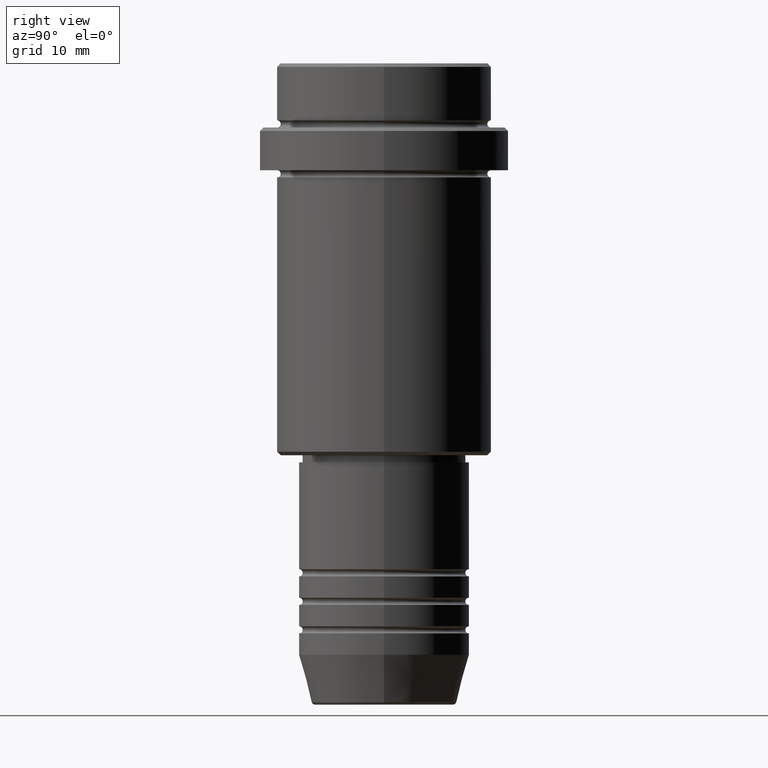
[diagram: clean part render]
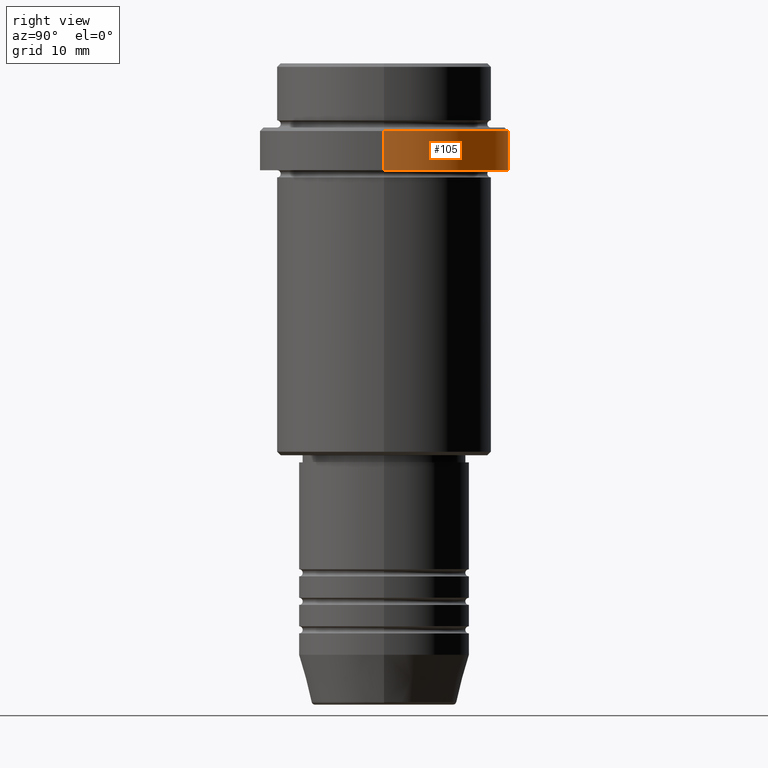
[diagram: same view with one face highlighted and labeled with its STEP entity id]
A machine part, right view. The second image highlights one B-rep face of the part: STEP entity #105.
In plain terms, the highlighted cylindrical surface (partial cylindrical patch) has radius 17.5 mm, axis along (-0, -0, 1).
Its self-contained STEP definition (entity closure, byte-faithful):
#38 = DIRECTION ( 'NONE',  ( 0.000000000000000000, 0.000000000000000000, -1.000000000000000000 ) ) ;
#61 = DIRECTION ( 'NONE',  ( 1.000000000000000000, 0.000000000000000000, 0.000000000000000000 ) ) ;
#105 = ADVANCED_FACE ( 'NONE', ( #704 ), #306, .T. ) ;
#123 = CARTESIAN_POINT ( 'NONE',  ( -17.50000000000000000, 2.143131898507868248E-15, 0.000000000000000000 ) ) ;
#181 = ORIENTED_EDGE ( 'NONE', *, *, #1268, .T. ) ;
#224 = CIRCLE ( 'NONE', #564, 17.50000000000000000 ) ;
#306 = CYLINDRICAL_SURFACE ( 'NONE', #516, 17.50000000000000000 ) ;
#321 = VERTEX_POINT ( 'NONE', #1023 ) ;
#360 = CIRCLE ( 'NONE', #1162, 17.50000000000000000 ) ;
#435 = ORIENTED_EDGE ( 'NONE', *, *, #630, .T. ) ;
#474 = CARTESIAN_POINT ( 'NONE',  ( -17.50000000000000000, 2.143131898507868248E-15, -15.00000000000000000 ) ) ;
#516 = AXIS2_PLACEMENT_3D ( 'NONE', #821, #1037, #1262 ) ;
#564 = AXIS2_PLACEMENT_3D ( 'NONE', #803, #687, #917 ) ;
#573 = CARTESIAN_POINT ( 'NONE',  ( 17.50000000000000000, 0.000000000000000000, -15.00000000000000000 ) ) ;
#609 = DIRECTION ( 'NONE',  ( -0.000000000000000000, -0.000000000000000000, 1.000000000000000000 ) ) ;
#630 = EDGE_CURVE ( 'NONE', #1267, #321, #360, .T. ) ;
#687 = DIRECTION ( 'NONE',  ( -0.000000000000000000, -0.000000000000000000, 1.000000000000000000 ) ) ;
#696 = EDGE_CURVE ( 'NONE', #976, #986, #224, .T. ) ;
#704 = FACE_OUTER_BOUND ( 'NONE', #732, .T. ) ;
#716 = LINE ( 'NONE', #797, #832 ) ;
#732 = EDGE_LOOP ( 'NONE', ( #985, #181, #435, #1075 ) ) ;
#780 = LINE ( 'NONE', #123, #1337 ) ;
#797 = CARTESIAN_POINT ( 'NONE',  ( 17.50000000000000000, 0.000000000000000000, 0.000000000000000000 ) ) ;
#803 = CARTESIAN_POINT ( 'NONE',  ( 0.000000000000000000, 0.000000000000000000, -15.00000000000000000 ) ) ;
#821 = CARTESIAN_POINT ( 'NONE',  ( 0.000000000000000000, 0.000000000000000000, 0.000000000000000000 ) ) ;
#832 = VECTOR ( 'NONE', #609, 1000.000000000000000 ) ;
#917 = DIRECTION ( 'NONE',  ( 1.000000000000000000, 0.000000000000000000, 0.000000000000000000 ) ) ;
#976 = VERTEX_POINT ( 'NONE', #573 ) ;
#985 = ORIENTED_EDGE ( 'NONE', *, *, #696, .T. ) ;
#986 = VERTEX_POINT ( 'NONE', #474 ) ;
#1023 = CARTESIAN_POINT ( 'NONE',  ( 17.50000000000000000, 0.000000000000000000, -9.499999999999971578 ) ) ;
#1037 = DIRECTION ( 'NONE',  ( -0.000000000000000000, -0.000000000000000000, 1.000000000000000000 ) ) ;
#1075 = ORIENTED_EDGE ( 'NONE', *, *, #1117, .F. ) ;
#1117 = EDGE_CURVE ( 'NONE', #976, #321, #716, .T. ) ;
#1162 = AXIS2_PLACEMENT_3D ( 'NONE', #1364, #38, #61 ) ;
#1262 = DIRECTION ( 'NONE',  ( 1.000000000000000000, 0.000000000000000000, 0.000000000000000000 ) ) ;
#1267 = VERTEX_POINT ( 'NONE', #1331 ) ;
#1268 = EDGE_CURVE ( 'NONE', #986, #1267, #780, .T. ) ;
#1320 = DIRECTION ( 'NONE',  ( -0.000000000000000000, -0.000000000000000000, 1.000000000000000000 ) ) ;
#1331 = CARTESIAN_POINT ( 'NONE',  ( -17.50000000000000000, 2.143131898507868248E-15, -9.499999999999971578 ) ) ;
#1337 = VECTOR ( 'NONE', #1320, 1000.000000000000000 ) ;
#1364 = CARTESIAN_POINT ( 'NONE',  ( 0.000000000000000000, 0.000000000000000000, -9.499999999999971578 ) ) ;